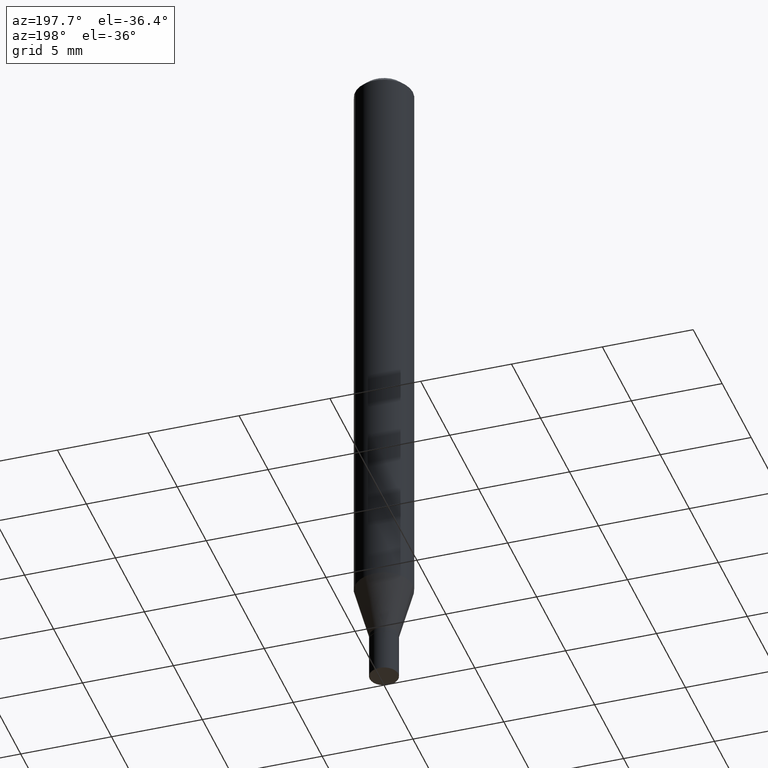
[diagram: clean part render]
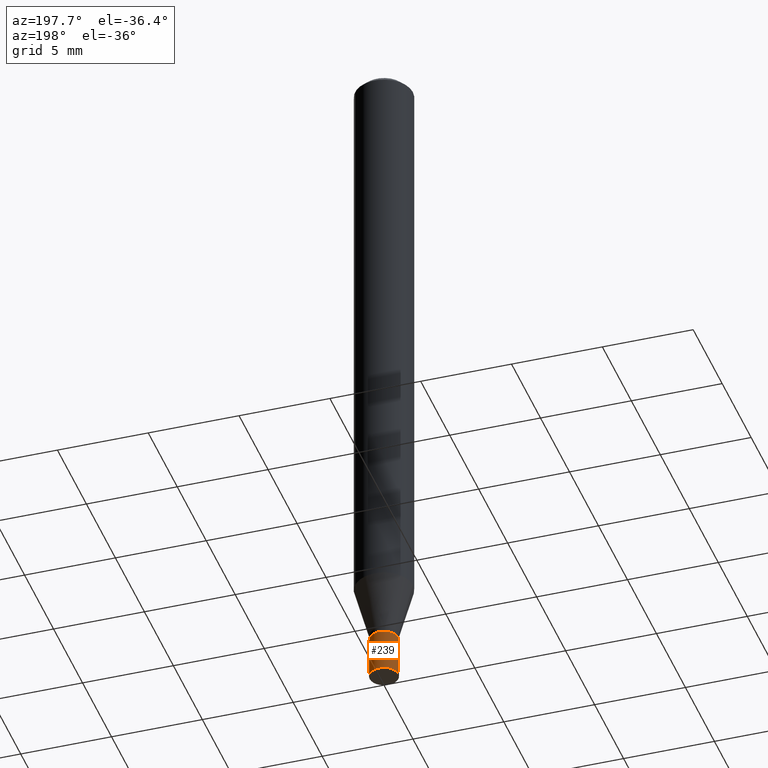
[diagram: same view with one face highlighted and labeled with its STEP entity id]
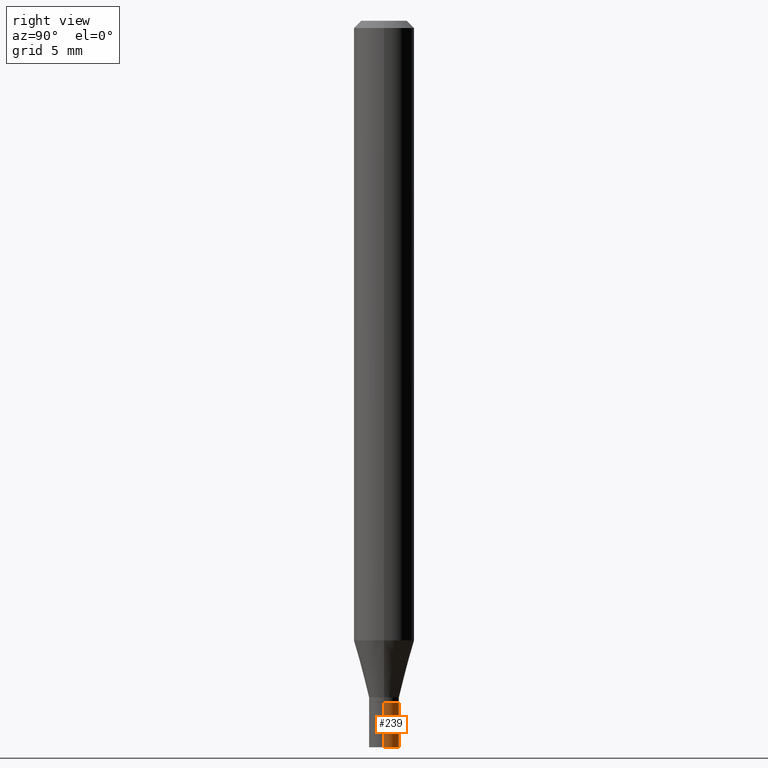
[diagram: same view with one face highlighted and labeled with its STEP entity id]
A machine part, auxiliary view. The second image highlights one B-rep face of the part: STEP entity #239.
A second angle (right view) of the same face is appended — the face is thin or edge-on in the first view.
In plain terms, the highlighted cylindrical surface (edge-blend (fillet) strip) has radius 0.7874 mm, axis along (-0, 0, 1).
Its self-contained STEP definition (entity closure, byte-faithful):
#1 = DIRECTION ( 'NONE',  ( 1.000000000000000000, -6.982962677686270655E-15, 0.000000000000000000 ) ) ;
#18 = VECTOR ( 'NONE', #175, 39.37007874015748143 ) ;
#25 = LINE ( 'NONE', #353, #18 ) ;
#35 = EDGE_CURVE ( 'NONE', #371, #223, #25, .T. ) ;
#37 = AXIS2_PLACEMENT_3D ( 'NONE', #122, #41, #441 ) ;
#39 = DIRECTION ( 'NONE',  ( -2.445468806185136597E-29, 3.491481338843145583E-15, 1.000000000000000000 ) ) ;
#41 = DIRECTION ( 'NONE',  ( -2.445468806185136597E-29, 3.491481338843145583E-15, 1.000000000000000000 ) ) ;
#45 = AXIS2_PLACEMENT_3D ( 'NONE', #374, #263, #112 ) ;
#93 = CIRCLE ( 'NONE', #158, 0.03099999999999999978 ) ;
#112 = DIRECTION ( 'NONE',  ( 1.000000000000000000, -6.982962677686266711E-15, 4.876176775795935232E-29 ) ) ;
#116 = CARTESIAN_POINT ( 'NONE',  ( -0.03099999999999999978, -4.854599877922879992E-15, -1.407000000000000028 ) ) ;
#122 = CARTESIAN_POINT ( 'NONE',  ( 3.440774610302487541E-29, -4.912514243752305891E-15, -1.407000000000000028 ) ) ;
#154 = EDGE_LOOP ( 'NONE', ( #255, #240, #173, #281 ) ) ;
#155 = CARTESIAN_POINT ( 'NONE',  ( 0.03099999999999999978, -5.128986086760580222E-15, -1.407000000000000028 ) ) ;
#158 = AXIS2_PLACEMENT_3D ( 'NONE', #443, #39, #1 ) ;
#162 = DIRECTION ( 'NONE',  ( -2.445468806185136877E-29, 3.491481338843145188E-15, 1.000000000000000000 ) ) ;
#173 = ORIENTED_EDGE ( 'NONE', *, *, #290, .F. ) ;
#175 = DIRECTION ( 'NONE',  ( -2.445468806185136877E-29, 3.491481338843145188E-15, 1.000000000000000000 ) ) ;
#184 = FACE_OUTER_BOUND ( 'NONE', #154, .T. ) ;
#220 = CYLINDRICAL_SURFACE ( 'NONE', #45, 0.03099999999999999978 ) ;
#223 = VERTEX_POINT ( 'NONE', #155 ) ;
#235 = CARTESIAN_POINT ( 'NONE',  ( -0.03099999999999999978, -4.854599877922879992E-15, -1.500000000000000222 ) ) ;
#239 = ADVANCED_FACE ( 'NONE', ( #184 ), #220, .T. ) ;
#240 = ORIENTED_EDGE ( 'NONE', *, *, #429, .T. ) ;
#255 = ORIENTED_EDGE ( 'NONE', *, *, #268, .T. ) ;
#263 = DIRECTION ( 'NONE',  ( -2.445468806185136597E-29, 3.491481338843145583E-15, 1.000000000000000000 ) ) ;
#268 = EDGE_CURVE ( 'NONE', #371, #372, #93, .T. ) ;
#271 = VECTOR ( 'NONE', #162, 39.37007874015748143 ) ;
#279 = LINE ( 'NONE', #380, #271 ) ;
#281 = ORIENTED_EDGE ( 'NONE', *, *, #35, .F. ) ;
#290 = EDGE_CURVE ( 'NONE', #223, #312, #331, .T. ) ;
#312 = VERTEX_POINT ( 'NONE', #116 ) ;
#331 = CIRCLE ( 'NONE', #37, 0.03099999999999999978 ) ;
#353 = CARTESIAN_POINT ( 'NONE',  ( 0.03099999999999999978, -2.164718430082742572E-16, 1.511614800496739984E-30 ) ) ;
#371 = VERTEX_POINT ( 'NONE', #415 ) ;
#372 = VERTEX_POINT ( 'NONE', #235 ) ;
#374 = CARTESIAN_POINT ( 'NONE',  ( 0.000000000000000000, 0.000000000000000000, 0.000000000000000000 ) ) ;
#380 = CARTESIAN_POINT ( 'NONE',  ( -0.03099999999999999978, 2.202682480856310560E-16, -1.524869877979020612E-30 ) ) ;
#415 = CARTESIAN_POINT ( 'NONE',  ( 0.03099999999999999978, -5.453693851272993297E-15, -1.500000000000000222 ) ) ;
#429 = EDGE_CURVE ( 'NONE', #372, #312, #279, .T. ) ;
#441 = DIRECTION ( 'NONE',  ( 1.000000000000000000, -6.982962677686270655E-15, 0.000000000000000000 ) ) ;
#443 = CARTESIAN_POINT ( 'NONE',  ( 3.668203209277704895E-29, -5.237222008264718177E-15, -1.500000000000000222 ) ) ;